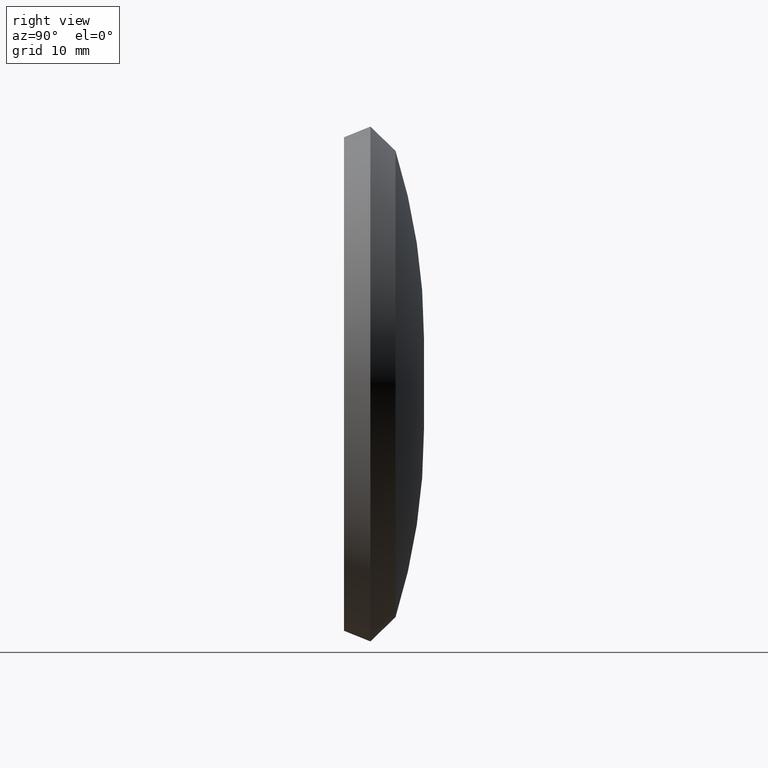
[diagram: clean part render]
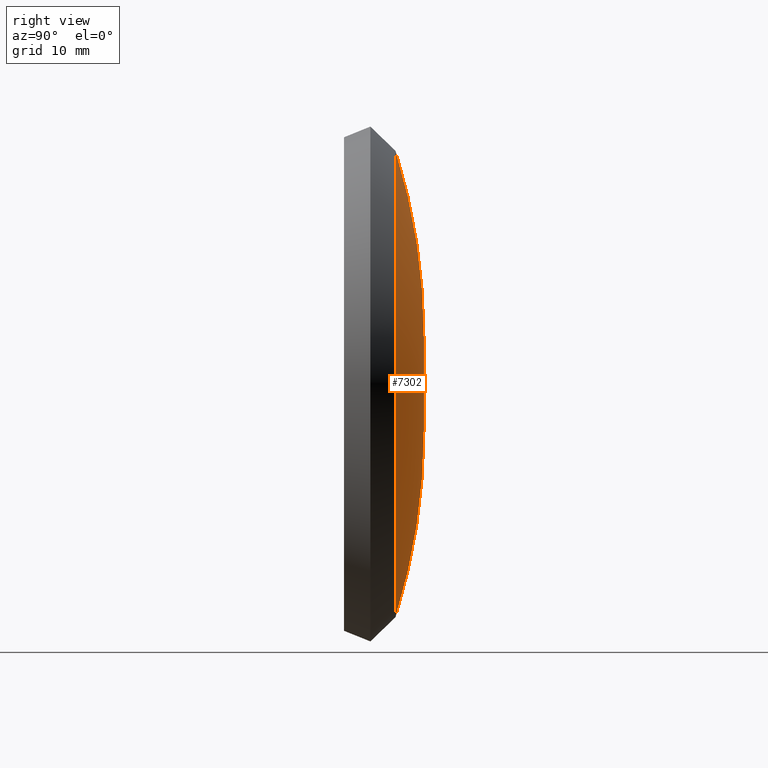
[diagram: same view with one face highlighted and labeled with its STEP entity id]
A machine part, right view. The second image highlights one B-rep face of the part: STEP entity #7302.
In plain terms, the highlighted toroidal blend (fillet) surface has major radius 5.25 mm and minor (blend) radius 70.5699 mm.
Its self-contained STEP definition (entity closure, byte-faithful):
#129 = ORIENTED_EDGE ( 'NONE', *, *, #999, .T. ) ;
#168 = DIRECTION ( 'NONE',  ( 0.000000000000000000, 0.000000000000000000, 1.000000000000000000 ) ) ;
#362 = AXIS2_PLACEMENT_3D ( 'NONE', #12023, #5664, #3458 ) ;
#501 = DIRECTION ( 'NONE',  ( 0.000000000000000000, 0.000000000000000000, -1.000000000000000000 ) ) ;
#652 = AXIS2_PLACEMENT_3D ( 'NONE', #1193, #13030, #168 ) ;
#668 = TOROIDAL_SURFACE ( 'NONE', #10607, 5.250000000000000000, 70.56990975288118761 ) ;
#710 = CIRCLE ( 'NONE', #652, 70.56990975288118761 ) ;
#982 = ORIENTED_EDGE ( 'NONE', *, *, #1590, .T. ) ;
#999 = EDGE_CURVE ( 'NONE', #4819, #11650, #8951, .T. ) ;
#1193 = CARTESIAN_POINT ( 'NONE',  ( 0.000000000000000000, -61.56990975288118761, -5.250000000000000000 ) ) ;
#1590 = EDGE_CURVE ( 'NONE', #4172, #4819, #8309, .T. ) ;
#1819 = DIRECTION ( 'NONE',  ( 0.000000000000000000, 0.000000000000000000, -1.000000000000000000 ) ) ;
#2600 = VERTEX_POINT ( 'NONE', #4107 ) ;
#3458 = DIRECTION ( 'NONE',  ( -1.224646799147353454E-16, 0.000000000000000000, -1.000000000000000000 ) ) ;
#3571 = CARTESIAN_POINT ( 'NONE',  ( 0.000000000000000000, -61.56990975288118761, 0.000000000000000000 ) ) ;
#3993 = EDGE_CURVE ( 'NONE', #4172, #2600, #710, .T. ) ;
#4107 = CARTESIAN_POINT ( 'NONE',  ( 0.000000000000000000, 5.797994029658290138, -26.26612957888053401 ) ) ;
#4172 = VERTEX_POINT ( 'NONE', #5278 ) ;
#4819 = VERTEX_POINT ( 'NONE', #13276 ) ;
#5278 = CARTESIAN_POINT ( 'NONE',  ( 0.000000000000000000, 8.999999999999994671, -5.250000000000000000 ) ) ;
#5664 = DIRECTION ( 'NONE',  ( 1.000000000000000000, 0.000000000000000000, -1.224646799147353207E-16 ) ) ;
#5710 = ORIENTED_EDGE ( 'NONE', *, *, #10304, .F. ) ;
#5805 = DIRECTION ( 'NONE',  ( -0.000000000000000000, -1.000000000000000000, -0.000000000000000000 ) ) ;
#5851 = ORIENTED_EDGE ( 'NONE', *, *, #3993, .F. ) ;
#7302 = ADVANCED_FACE ( 'NONE', ( #13280 ), #668, .T. ) ;
#8309 = CIRCLE ( 'NONE', #9001, 5.250000000000000000 ) ;
#8369 = AXIS2_PLACEMENT_3D ( 'NONE', #12212, #5805, #501 ) ;
#8879 = CIRCLE ( 'NONE', #8369, 26.26612957888053401 ) ;
#8951 = CIRCLE ( 'NONE', #362, 70.56990975288118761 ) ;
#9001 = AXIS2_PLACEMENT_3D ( 'NONE', #10362, #9286, #1819 ) ;
#9286 = DIRECTION ( 'NONE',  ( -0.000000000000000000, -1.000000000000000000, -0.000000000000000000 ) ) ;
#10100 = DIRECTION ( 'NONE',  ( 0.000000000000000000, 0.000000000000000000, -1.000000000000000000 ) ) ;
#10304 = EDGE_CURVE ( 'NONE', #2600, #11650, #8879, .T. ) ;
#10362 = CARTESIAN_POINT ( 'NONE',  ( 0.000000000000000000, 8.999999999999994671, 0.000000000000000000 ) ) ;
#10607 = AXIS2_PLACEMENT_3D ( 'NONE', #3571, #13457, #10100 ) ;
#11650 = VERTEX_POINT ( 'NONE', #13911 ) ;
#12023 = CARTESIAN_POINT ( 'NONE',  ( 6.429395695523604153E-16, -61.56990975288118761, 5.250000000000000000 ) ) ;
#12212 = CARTESIAN_POINT ( 'NONE',  ( 0.000000000000000000, 5.797994029658290138, 0.000000000000000000 ) ) ;
#13030 = DIRECTION ( 'NONE',  ( -1.000000000000000000, 0.000000000000000000, 0.000000000000000000 ) ) ;
#13276 = CARTESIAN_POINT ( 'NONE',  ( 1.929806360514462699E-15, 8.999999999999994671, 5.250000000000000000 ) ) ;
#13280 = FACE_OUTER_BOUND ( 'NONE', #13859, .T. ) ;
#13457 = DIRECTION ( 'NONE',  ( -0.000000000000000000, -1.000000000000000000, -0.000000000000000000 ) ) ;
#13859 = EDGE_LOOP ( 'NONE', ( #982, #129, #5710, #5851 ) ) ;
#13911 = CARTESIAN_POINT ( 'NONE',  ( 3.384074434501944950E-15, 5.797994029658290138, 26.26612957888053401 ) ) ;